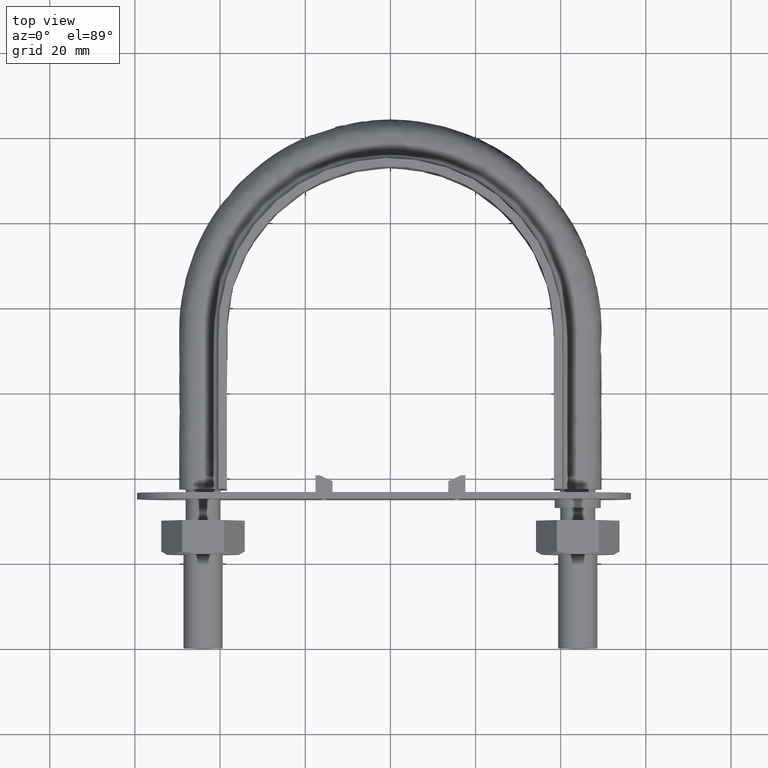
[diagram: clean part render]
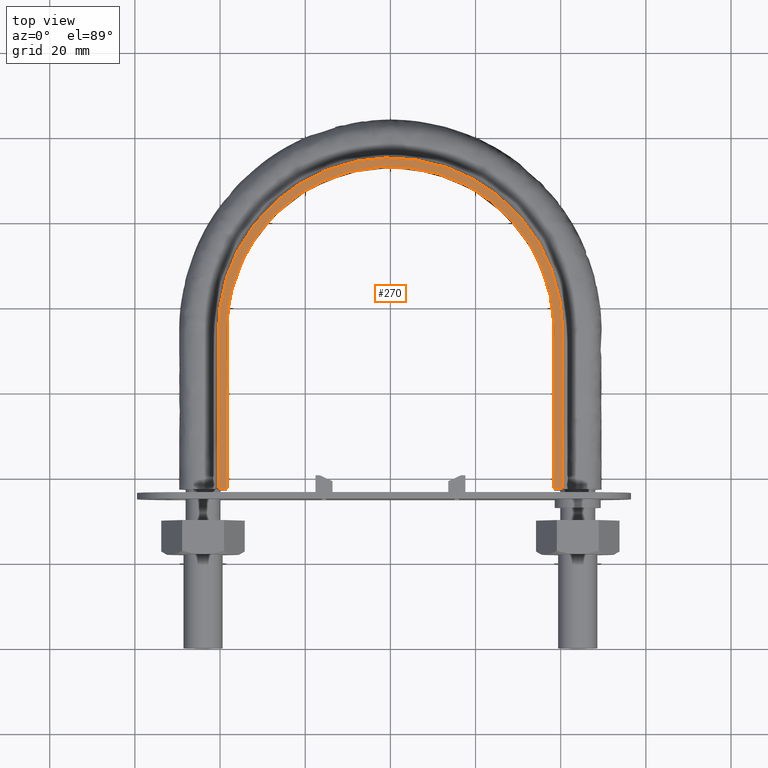
[diagram: same view with one face highlighted and labeled with its STEP entity id]
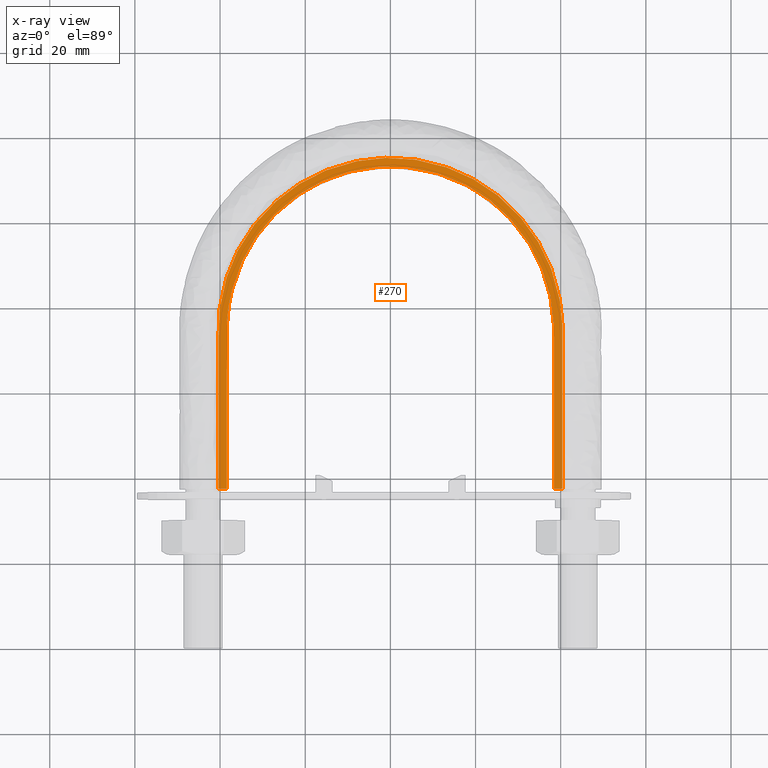
[diagram: x-ray of the same camera — body ghosted, the highlighted face saturated]
A machine part, top view. The second image highlights one B-rep face of the part: STEP entity #270.
The next image is the same camera in x-ray: the body ghosted, the highlighted face saturated — about 0% of this face is hidden behind the body in this view.
In plain terms, the highlighted planar face has unit normal (0, 0, 1).
Its self-contained STEP definition (entity closure, byte-faithful):
#270 = ADVANCED_FACE( '', ( #389 ), #390, .T. );
#389 = FACE_OUTER_BOUND( '', #647, .T. );
#390 = PLANE( '', #648 );
#647 = EDGE_LOOP( '', ( #1758, #1759, #1760, #1761 ) );
#648 = AXIS2_PLACEMENT_3D( '', #1762, #1763, #1764 );
#1758 = ORIENTED_EDGE( '', *, *, #2547, .T. );
#1759 = ORIENTED_EDGE( '', *, *, #2556, .F. );
#1760 = ORIENTED_EDGE( '', *, *, #2551, .T. );
#1761 = ORIENTED_EDGE( '', *, *, #2557, .F. );
#1762 = CARTESIAN_POINT( '', ( 55.0000000000000, 137.300000000000, 12.5000000000000 ) );
#1763 = DIRECTION( '', ( 0.000000000000000, 0.000000000000000, 1.00000000000000 ) );
#1764 = DIRECTION( '', ( 1.22460635382238E-016, 1.00000000000000, 0.000000000000000 ) );
#2547 = EDGE_CURVE( '', #2790, #2787, #2791, .T. );
#2551 = EDGE_CURVE( '', #2797, #2798, #2799, .T. );
#2556 = EDGE_CURVE( '', #2797, #2787, #2806, .T. );
#2557 = EDGE_CURVE( '', #2790, #2798, #2807, .T. );
#2787 = VERTEX_POINT( '', #3194 );
#2790 = VERTEX_POINT( '', #3198 );
#2791 = LINE( '', #3199, #3200 );
#2797 = VERTEX_POINT( '', #3246 );
#2798 = VERTEX_POINT( '', #3247 );
#2799 = LINE( '', #3248, #3249 );
#2806 = B_SPLINE_CURVE_WITH_KNOTS( '', 3, ( #3304, #3305, #3306, #3307, #3308, #3309, #3310, #3311, #3312, #3313, #3314, #3315, #3316, #3317, #3318, #3319, #3320, #3321, #3322, #3323, #3324, #3325, #3326, #3327, #3328, #3329, #3330, #3331, #3332, #3333, #3334, #3335, #3336, #3337, #3338, #3339, #3340, #3341, #3342, #3343, #3344, #3345, #3346, #3347, #3348, #3349, #3350, #3351, #3352, #3353, #3354, #3355, #3356, #3357, #3358, #3359, #3360, #3361, #3362, #3363, #3364, #3365, #3366, #3367, #3368, #3369, #3370, #3371, #3372, #3373, #3374, #3375, #3376, #3377, #3378, #3379, #3380, #3381, #3382, #3383, #3384, #3385, #3386, #3387, #3388, #3389 ), .UNSPECIFIED., .F., .F., ( 4, 1, 2, 2, 2, 2, 2, 2, 2, 2, 2, 2, 2, 2, 2, 2, 2, 2, 2, 2, 2, 2, 2, 2, 2, 2, 2, 2, 2, 2, 2, 2, 2, 2, 2, 2, 2, 2, 2, 2, 2, 2, 1, 4 ), ( 6.93889390390723E-018, 0.0243379018108105, 0.0365068527162158, 0.0380279715793914, 0.0395490904425670, 0.0425913281689183, 0.0456335658952696, 0.0486758036216209, 0.0547602790743234, 0.0578025168006747, 0.0593236356638503, 0.0608447545270259, 0.0669292299797284, 0.0699714677060797, 0.0714925865692553, 0.0730137054324310, 0.0790981808851335, 0.0851826563378360, 0.0867037752010117, 0.0882248940641873, 0.0912671317905386, 0.0973516072432410, 0.0988727261064167, 0.100393844969592, 0.103436082695944, 0.109520558148646, 0.112562795874997, 0.115605033601349, 0.121689509054051, 0.123210627917227, 0.124731746780402, 0.127773984506753, 0.133858459959456, 0.136900697685807, 0.139942935412158, 0.146027410864861, 0.149069648591212, 0.150590767454388, 0.152111886317563, 0.155154124043914, 0.156675242907090, 0.158196361770266, 0.170365312675671, 0.194703214486481 ), .UNSPECIFIED. );
#2807 = B_SPLINE_CURVE_WITH_KNOTS( '', 3, ( #3390, #3391, #3392, #3393, #3394, #3395, #3396, #3397, #3398, #3399, #3400, #3401, #3402, #3403, #3404, #3405, #3406 ), .UNSPECIFIED., .F., .F., ( 4, 3, 1, 1, 1, 1, 1, 1, 1, 3, 4 ), ( 0.0698254364089772, 1.00000000000000, 1.50000000000000, 2.00000000000000, 3.00000000000000, 4.00000000000000, 5.00000000000000, 6.00000000000000, 6.50000000000000, 7.00000000000000, 7.93017456359102 ), .UNSPECIFIED. );
#3194 = CARTESIAN_POINT( '', ( -38.4000000000000, 37.3000000000000, 12.5000000000000 ) );
#3198 = CARTESIAN_POINT( '', ( -40.4000000000000, 37.3000000000000, 12.5000000000000 ) );
#3199 = CARTESIAN_POINT( '', ( -55.0000000000000, 37.3000000000000, 12.5000000000000 ) );
#3200 = VECTOR( '', #4085, 1000.00000000000 );
#3246 = CARTESIAN_POINT( '', ( 38.4000000000000, 37.3000000000000, 12.5000000000000 ) );
#3247 = CARTESIAN_POINT( '', ( 40.4000000000000, 37.3000000000000, 12.5000000000000 ) );
#3248 = CARTESIAN_POINT( '', ( -55.0000000000000, 37.3000000000000, 12.5000000000000 ) );
#3249 = VECTOR( '', #4087, 1000.00000000000 );
#3304 = CARTESIAN_POINT( '', ( 38.4000000000000, 37.3000000000000, 12.5000000000000 ) );
#3305 = CARTESIAN_POINT( '', ( 38.4000000000000, 45.4126339369367, 12.5000000000000 ) );
#3306 = CARTESIAN_POINT( '', ( 38.4000000000000, 57.5815848423419, 12.5000000000000 ) );
#3307 = CARTESIAN_POINT( '', ( 38.4000000000000, 69.7505357477469, 12.5000000000000 ) );
#3308 = CARTESIAN_POINT( '', ( 38.4000000000000, 74.3138923372738, 12.5000000000000 ) );
#3309 = CARTESIAN_POINT( '', ( 38.4027743076037, 74.8211194098904, 12.5000000000000 ) );
#3310 = CARTESIAN_POINT( '', ( 38.3830167791574, 75.8338636956792, 12.5000000000000 ) );
#3311 = CARTESIAN_POINT( '', ( 38.3628782069929, 76.3395426144401, 12.5000000000000 ) );
#3312 = CARTESIAN_POINT( '', ( 38.2722040230530, 77.8545348977658, 12.5000000000000 ) );
#3313 = CARTESIAN_POINT( '', ( 38.1714849409613, 78.8618088567026, 12.5000000000000 ) );
#3314 = CARTESIAN_POINT( '', ( 37.8904277266655, 80.8709771566201, 12.5000000000000 ) );
#3315 = CARTESIAN_POINT( '', ( 37.7100929165158, 81.8728717220619, 12.5000000000000 ) );
#3316 = CARTESIAN_POINT( '', ( 37.2682777085644, 83.8711780914732, 12.5000000000000 ) );
#3317 = CARTESIAN_POINT( '', ( 37.0058649207665, 84.8692095980045, 12.5000000000000 ) );
#3318 = CARTESIAN_POINT( '', ( 36.1099085355124, 87.8004283289942, 12.5000000000000 ) );
#3319 = CARTESIAN_POINT( '', ( 35.3652812283339, 89.6892778605102, 12.5000000000000 ) );
#3320 = CARTESIAN_POINT( '', ( 34.0270721353676, 92.4244820465236, 12.5000000000000 ) );
#3321 = CARTESIAN_POINT( '', ( 33.5438803306412, 93.3197635736672, 12.5000000000000 ) );
#3322 = CARTESIAN_POINT( '', ( 32.7614856080269, 94.6371533741601, 12.5000000000000 ) );
#3323 = CARTESIAN_POINT( '', ( 32.4911122498970, 95.0720394393450, 12.5000000000000 ) );
#3324 = CARTESIAN_POINT( '', ( 31.9310694523163, 95.9332591910994, 12.5000000000000 ) );
#3325 = CARTESIAN_POINT( '', ( 31.6416548483074, 96.3590998328813, 12.5000000000000 ) );
#3326 = CARTESIAN_POINT( '', ( 30.1598500561493, 98.4479727097781, 12.5000000000000 ) );
#3327 = CARTESIAN_POINT( '', ( 28.8544690281685, 100.006253780205, 12.5000000000000 ) );
#3328 = CARTESIAN_POINT( '', ( 26.7242269234555, 102.181725572989, 12.5000000000000 ) );
#3329 = CARTESIAN_POINT( '', ( 25.9852601970116, 102.879711605143, 12.5000000000000 ) );
#3330 = CARTESIAN_POINT( '', ( 24.8327554866620, 103.885251295440, 12.5000000000000 ) );
#3331 = CARTESIAN_POINT( '', ( 24.4412331318475, 104.213513644747, 12.5000000000000 ) );
#3332 = CARTESIAN_POINT( '', ( 23.6432116170529, 104.855950622700, 12.5000000000000 ) );
#3333 = CARTESIAN_POINT( '', ( 23.2357844532912, 105.170799679600, 12.5000000000000 ) );
#3334 = CARTESIAN_POINT( '', ( 21.1728995967699, 106.699717522120, 12.5000000000000 ) );
#3335 = CARTESIAN_POINT( '', ( 19.4461214786922, 107.775116348712, 12.5000000000000 ) );
#3336 = CARTESIAN_POINT( '', ( 15.8424012951625, 109.635807157406, 12.5000000000000 ) );
#3337 = CARTESIAN_POINT( '', ( 13.9663663217122, 110.422851581443, 12.5000000000000 ) );
#3338 = CARTESIAN_POINT( '', ( 11.5271708169510, 111.224762065559, 12.5000000000000 ) );
#3339 = CARTESIAN_POINT( '', ( 11.0351210878856, 111.375746188077, 12.5000000000000 ) );
#3340 = CARTESIAN_POINT( '', ( 10.0502423640906, 111.656786422983, 12.5000000000000 ) );
#3341 = CARTESIAN_POINT( '', ( 9.55637016529610, 111.787194835959, 12.5000000000000 ) );
#3342 = CARTESIAN_POINT( '', ( 8.07051418322849, 112.148502213831, 12.5000000000000 ) );
#3343 = CARTESIAN_POINT( '', ( 7.07429985999563, 112.349545743025, 12.5000000000000 ) );
#3344 = CARTESIAN_POINT( '', ( 4.06886690428269, 112.834187354574, 12.5000000000000 ) );
#3345 = CARTESIAN_POINT( '', ( 2.04300780873461, 113.000351662539, 12.5000000000000 ) );
#3346 = CARTESIAN_POINT( '', ( -0.518810472446378, 112.999911391897, 12.5000000000000 ) );
#3347 = CARTESIAN_POINT( '', ( -1.03384934041149, 112.989267949138, 12.5000000000000 ) );
#3348 = CARTESIAN_POINT( '', ( -2.05999227101049, 112.947123645522, 12.5000000000000 ) );
#3349 = CARTESIAN_POINT( '', ( -2.57100025916389, 112.915690794062, 12.5000000000000 ) );
#3350 = CARTESIAN_POINT( '', ( -4.09798525337142, 112.791070625936, 12.5000000000000 ) );
#3351 = CARTESIAN_POINT( '', ( -5.10793619044585, 112.667626472699, 12.5000000000000 ) );
#3352 = CARTESIAN_POINT( '', ( -8.11438462156156, 112.179780837088, 12.5000000000000 ) );
#3353 = CARTESIAN_POINT( '', ( -10.0876738344831, 111.698850790018, 12.5000000000000 ) );
#3354 = CARTESIAN_POINT( '', ( -13.0003199951633, 110.740024822744, 12.5000000000000 ) );
#3355 = CARTESIAN_POINT( '', ( -13.9672170977489, 110.378727202231, 12.5000000000000 ) );
#3356 = CARTESIAN_POINT( '', ( -15.8546719802247, 109.585984907772, 12.5000000000000 ) );
#3357 = CARTESIAN_POINT( '', ( -16.7774313079130, 109.154197465974, 12.5000000000000 ) );
#3358 = CARTESIAN_POINT( '', ( -19.4833402127084, 107.753490344414, 12.5000000000000 ) );
#3359 = CARTESIAN_POINT( '', ( -21.2036319794212, 106.678400373100, 12.5000000000000 ) );
#3360 = CARTESIAN_POINT( '', ( -23.2504143165325, 105.159581599005, 12.5000000000000 ) );
#3361 = CARTESIAN_POINT( '', ( -23.6545765017692, 104.847044416500, 12.5000000000000 ) );
#3362 = CARTESIAN_POINT( '', ( -24.4524162332021, 104.204260920726, 12.5000000000000 ) );
#3363 = CARTESIAN_POINT( '', ( -24.8469576925092, 103.873240647292, 12.5000000000000 ) );
#3364 = CARTESIAN_POINT( '', ( -26.0068899055371, 102.860053871449, 12.5000000000000 ) );
#3365 = CARTESIAN_POINT( '', ( -26.7486892538448, 102.158088969383, 12.5000000000000 ) );
#3366 = CARTESIAN_POINT( '', ( -28.8823748109425, 99.9749913172511, 12.5000000000000 ) );
#3367 = CARTESIAN_POINT( '', ( -30.1833131714203, 98.4172992895713, 12.5000000000000 ) );
#3368 = CARTESIAN_POINT( '', ( -31.9490860628643, 95.9244952680188, 12.5000000000000 ) );
#3369 = CARTESIAN_POINT( '', ( -32.5065492449491, 95.0673574400837, 12.5000000000000 ) );
#3370 = CARTESIAN_POINT( '', ( -33.5561706257858, 93.2981084952208, 12.5000000000000 ) );
#3371 = CARTESIAN_POINT( '', ( -34.0419906193421, 92.3961278792793, 12.5000000000000 ) );
#3372 = CARTESIAN_POINT( '', ( -35.3824842141315, 89.6497254279648, 12.5000000000000 ) );
#3373 = CARTESIAN_POINT( '', ( -36.1236281599903, 87.7611046726044, 12.5000000000000 ) );
#3374 = CARTESIAN_POINT( '', ( -37.0127103209051, 84.8439686210019, 12.5000000000000 ) );
#3375 = CARTESIAN_POINT( '', ( -37.2717329928220, 83.8574678769680, 12.5000000000000 ) );
#3376 = CARTESIAN_POINT( '', ( -37.6030425852182, 82.3560732451662, 12.5000000000000 ) );
#3377 = CARTESIAN_POINT( '', ( -37.7041051856698, 81.8508772890733, 12.5000000000000 ) );
#3378 = CARTESIAN_POINT( '', ( -37.8853786337736, 80.8410267292641, 12.5000000000000 ) );
#3379 = CARTESIAN_POINT( '', ( -37.9657364586179, 80.3359356167599, 12.5000000000000 ) );
#3380 = CARTESIAN_POINT( '', ( -38.1763323138402, 78.8201705745681, 12.5000000000000 ) );
#3381 = CARTESIAN_POINT( '', ( -38.2761686057871, 77.8090061644103, 12.5000000000000 ) );
#3382 = CARTESIAN_POINT( '', ( -38.3651025185759, 76.2912783131884, 12.5000000000000 ) );
#3383 = CARTESIAN_POINT( '', ( -38.3845912942189, 75.7852051818454, 12.5000000000000 ) );
#3384 = CARTESIAN_POINT( '', ( -38.4030301939459, 74.7727275628626, 12.5000000000000 ) );
#3385 = CARTESIAN_POINT( '', ( -38.4000000000000, 74.2662911261510, 12.5000000000000 ) );
#3386 = CARTESIAN_POINT( '', ( -38.4000000000000, 69.7088031790913, 12.5000000000000 ) );
#3387 = CARTESIAN_POINT( '', ( -38.4000000000000, 57.5555019869321, 12.5000000000000 ) );
#3388 = CARTESIAN_POINT( '', ( -38.4000000000000, 45.4022007947727, 12.5000000000000 ) );
#3389 = CARTESIAN_POINT( '', ( -38.4000000000000, 37.3000000000000, 12.5000000000000 ) );
#3390 = CARTESIAN_POINT( '', ( -40.4000000000000, 37.3000000000000, 12.5000000000000 ) );
#3391 = CARTESIAN_POINT( '', ( -40.4000000000000, 49.7333333333333, 12.5000000000000 ) );
#3392 = CARTESIAN_POINT( '', ( -40.4000000000000, 62.1666666666667, 12.5000000000000 ) );
#3393 = CARTESIAN_POINT( '', ( -40.4000000000000, 74.6000000000000, 12.5000000000000 ) );
#3394 = CARTESIAN_POINT( '', ( -40.4000000000000, 78.1165288331969, 12.5000000000000 ) );
#3395 = CARTESIAN_POINT( '', ( -39.4544182095027, 85.1751790194886, 12.5000000000000 ) );
#3396 = CARTESIAN_POINT( '', ( -34.0439198137652, 98.3222802912663, 12.5000000000000 ) );
#3397 = CARTESIAN_POINT( '', ( -21.1440253219688, 111.223582281160, 12.5000000000000 ) );
#3398 = CARTESIAN_POINT( '', ( 2.90593538714191E-014, 116.888208859420, 12.5000000000000 ) );
#3399 = CARTESIAN_POINT( '', ( 21.1440253219689, 111.223582281160, 12.5000000000000 ) );
#3400 = CARTESIAN_POINT( '', ( 34.0439198137653, 98.3222802912663, 12.5000000000000 ) );
#3401 = CARTESIAN_POINT( '', ( 39.4544182095027, 85.1751790194886, 12.5000000000000 ) );
#3402 = CARTESIAN_POINT( '', ( 40.4000000000000, 78.1165288331969, 12.5000000000000 ) );
#3403 = CARTESIAN_POINT( '', ( 40.4000000000000, 74.6000000000000, 12.5000000000000 ) );
#3404 = CARTESIAN_POINT( '', ( 40.4000000000000, 62.1666666666667, 12.5000000000000 ) );
#3405 = CARTESIAN_POINT( '', ( 40.4000000000000, 49.7333333333333, 12.5000000000000 ) );
#3406 = CARTESIAN_POINT( '', ( 40.4000000000000, 37.3000000000000, 12.5000000000000 ) );
#4085 = DIRECTION( '', ( 1.00000000000000, -1.22460635382238E-016, 0.000000000000000 ) );
#4087 = DIRECTION( '', ( 1.00000000000000, -1.22460635382238E-016, 0.000000000000000 ) );